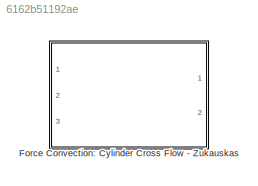
MODEL slx_6162b51192ae
KIND library
CONFIG AbsTol = auto
CONFIG FixedStep = auto
CONFIG MaxStep = auto
CONFIG MinStep = auto
CONFIG RelTol = 1e-3
CONFIG SampleTimeConstraint = Unconstrained
CONFIG Solver = ode45
CONFIG SolverMode = Auto
CONFIG SolverName = ode45
CONFIG StartTime = 0.0
CONFIG StopTime = 10.0
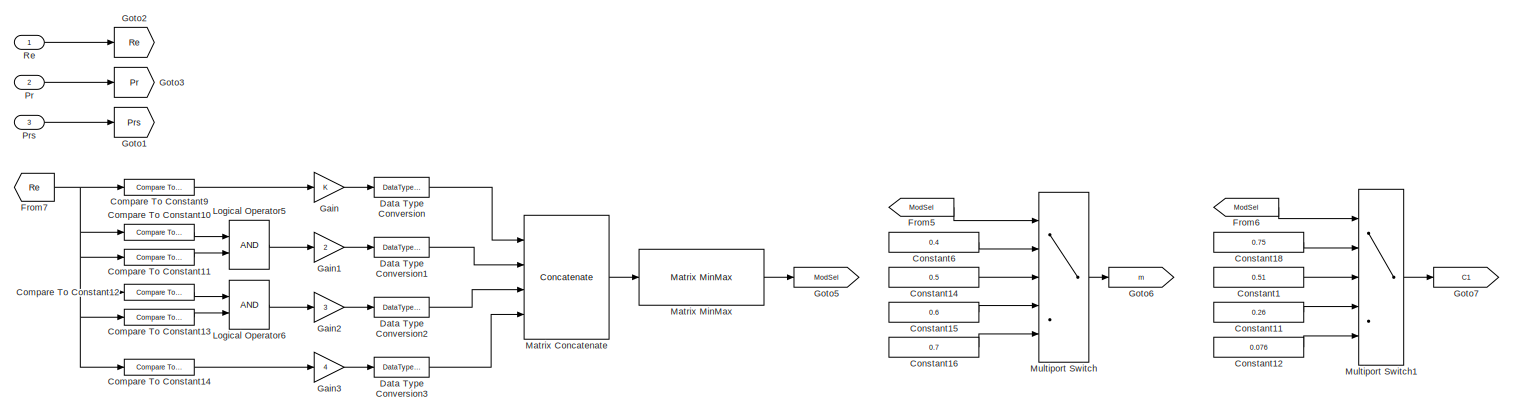
[diagram: Force Convection: Cylinder Cross Flow - Zukauskas - part 1/2, full width, top band]
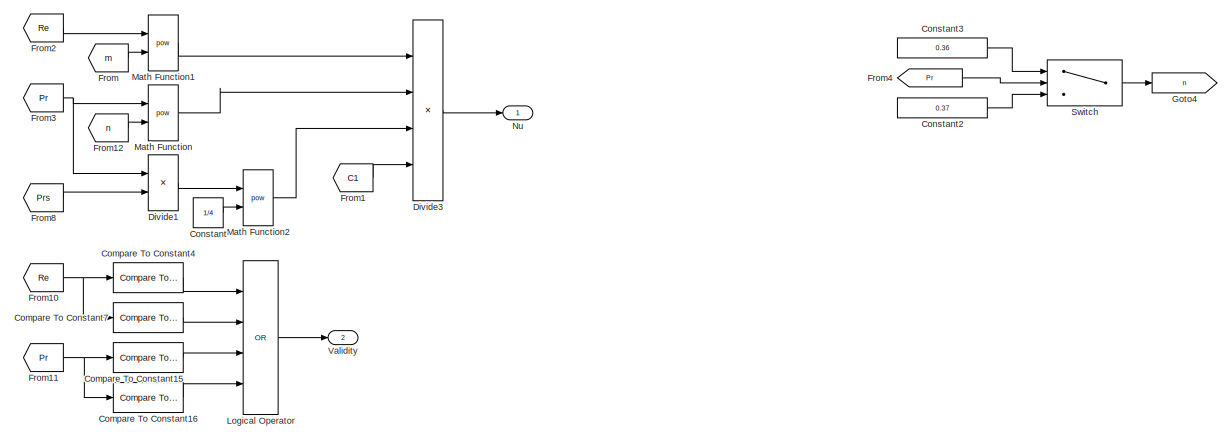
[diagram: Force Convection: Cylinder Cross Flow - Zukauskas - part 2/2, full width, bottom band]
BLOCK [SubSystem] Force Convection: Cylinder Cross Flow - Zukauskas
  Ports = [3, 2]
  RequestExecContextInheritance = off
BLOCK [Reference] Force Convection: Cylinder Cross Flow - Zukauskas/Compare To Constant10  REF=simulink/Logic and Bit
Operations/Compare
To Constant
  OutDataTypeStr = boolean
  Ports = [1, 1]
  SourceBlock = simulink/Logic and Bit\nOperations/Compare\nTo Constant
  SourceType = Compare To Constant
  ZeroCross = on
  const = 40
  relop = >=
BLOCK [Reference] Force Convection: Cylinder Cross Flow - Zukauskas/Compare To Constant11  REF=simulink/Logic and Bit
Operations/Compare
To Constant
  OutDataTypeStr = boolean
  Ports = [1, 1]
  SourceBlock = simulink/Logic and Bit\nOperations/Compare\nTo Constant
  SourceType = Compare To Constant
  ZeroCross = on
  const = 1000
  relop = <
BLOCK [Reference] Force Convection: Cylinder Cross Flow - Zukauskas/Compare To Constant12  REF=simulink/Logic and Bit
Operations/Compare
To Constant
  OutDataTypeStr = boolean
  Ports = [1, 1]
  SourceBlock = simulink/Logic and Bit\nOperations/Compare\nTo Constant
  SourceType = Compare To Constant
  ZeroCross = on
  const = 1000
  relop = >=
BLOCK [Reference] Force Convection: Cylinder Cross Flow - Zukauskas/Compare To Constant13  REF=simulink/Logic and Bit
Operations/Compare
To Constant
  OutDataTypeStr = boolean
  Ports = [1, 1]
  SourceBlock = simulink/Logic and Bit\nOperations/Compare\nTo Constant
  SourceType = Compare To Constant
  ZeroCross = on
  const = 200000
  relop = <
BLOCK [Reference] Force Convection: Cylinder Cross Flow - Zukauskas/Compare To Constant14  REF=simulink/Logic and Bit
Operations/Compare
To Constant
  OutDataTypeStr = boolean
  Ports = [1, 1]
  SourceBlock = simulink/Logic and Bit\nOperations/Compare\nTo Constant
  SourceType = Compare To Constant
  ZeroCross = on
  const = 200000
  relop = >=
BLOCK [Reference] Force Convection: Cylinder Cross Flow - Zukauskas/Compare To Constant15  REF=simulink/Logic and Bit
Operations/Compare
To Constant
  OutDataTypeStr = boolean
  Ports = [1, 1]
  SourceBlock = simulink/Logic and Bit\nOperations/Compare\nTo Constant
  SourceType = Compare To Constant
  ZeroCross = on
  const = 0.7
  relop = <
BLOCK [Reference] Force Convection: Cylinder Cross Flow - Zukauskas/Compare To Constant16  REF=simulink/Logic and Bit
Operations/Compare
To Constant
  OutDataTypeStr = boolean
  Ports = [1, 1]
  SourceBlock = simulink/Logic and Bit\nOperations/Compare\nTo Constant
  SourceType = Compare To Constant
  ZeroCross = on
  const = 500
  relop = >
BLOCK [Reference] Force Convection: Cylinder Cross Flow - Zukauskas/Compare To Constant4  REF=simulink/Logic and Bit
Operations/Compare
To Constant
  OutDataTypeStr = boolean
  Ports = [1, 1]
  SourceBlock = simulink/Logic and Bit\nOperations/Compare\nTo Constant
  SourceType = Compare To Constant
  ZeroCross = on
  const = 1
  relop = <
BLOCK [Reference] Force Convection: Cylinder Cross Flow - Zukauskas/Compare To Constant7  REF=simulink/Logic and Bit
Operations/Compare
To Constant
  OutDataTypeStr = boolean
  Ports = [1, 1]
  SourceBlock = simulink/Logic and Bit\nOperations/Compare\nTo Constant
  SourceType = Compare To Constant
  ZeroCross = on
  const = 1000000
  relop = >
BLOCK [Reference] Force Convection: Cylinder Cross Flow - Zukauskas/Compare To Constant9  REF=simulink/Logic and Bit
Operations/Compare
To Constant
  OutDataTypeStr = boolean
  Ports = [1, 1]
  SourceBlock = simulink/Logic and Bit\nOperations/Compare\nTo Constant
  SourceType = Compare To Constant
  ZeroCross = on
  const = 40
  relop = <
BLOCK [Constant] Force Convection: Cylinder Cross Flow - Zukauskas/Constant
  Value = 1/4
BLOCK [Constant] Force Convection: Cylinder Cross Flow - Zukauskas/Constant1
  Value = 0.51
BLOCK [Constant] Force Convection: Cylinder Cross Flow - Zukauskas/Constant11
  Value = 0.26
BLOCK [Constant] Force Convection: Cylinder Cross Flow - Zukauskas/Constant12
  Value = 0.076
BLOCK [Constant] Force Convection: Cylinder Cross Flow - Zukauskas/Constant14
  Value = 0.5
BLOCK [Constant] Force Convection: Cylinder Cross Flow - Zukauskas/Constant15
  Value = 0.6
BLOCK [Constant] Force Convection: Cylinder Cross Flow - Zukauskas/Constant16
  Value = 0.7
BLOCK [Constant] Force Convection: Cylinder Cross Flow - Zukauskas/Constant18
  Value = 0.75
BLOCK [Constant] Force Convection: Cylinder Cross Flow - Zukauskas/Constant2
  Value = 0.37
BLOCK [Constant] Force Convection: Cylinder Cross Flow - Zukauskas/Constant3
  Value = 0.36
BLOCK [Constant] Force Convection: Cylinder Cross Flow - Zukauskas/Constant6
  Value = 0.4
BLOCK [DataTypeConversion] Force Convection: Cylinder Cross Flow - Zukauskas/Data Type Conversion
  OutDataTypeStr = double
  RndMeth = Floor
  SaturateOnIntegerOverflow = off
BLOCK [DataTypeConversion] Force Convection: Cylinder Cross Flow - Zukauskas/Data Type Conversion1
  OutDataTypeStr = double
  RndMeth = Floor
  SaturateOnIntegerOverflow = off
BLOCK [DataTypeConversion] Force Convection: Cylinder Cross Flow - Zukauskas/Data Type Conversion2
  OutDataTypeStr = double
  RndMeth = Floor
  SaturateOnIntegerOverflow = off
BLOCK [DataTypeConversion] Force Convection: Cylinder Cross Flow - Zukauskas/Data Type Conversion3
  OutDataTypeStr = double
  RndMeth = Floor
  SaturateOnIntegerOverflow = off
BLOCK [Product] Force Convection: Cylinder Cross Flow - Zukauskas/Divide1
  InputSameDT = off
  Inputs = */
  OutDataTypeStr = Inherit: Inherit via internal rule
  Ports = [2, 1]
  RndMeth = Floor
  SaturateOnIntegerOverflow = off
BLOCK [Product] Force Convection: Cylinder Cross Flow - Zukauskas/Divide3
  InputSameDT = off
  Inputs = ****
  OutDataTypeStr = Inherit: Inherit via internal rule
  Ports = [4, 1]
  RndMeth = Floor
  SaturateOnIntegerOverflow = off
BLOCK [From] Force Convection: Cylinder Cross Flow - Zukauskas/From
  GotoTag = m
BLOCK [From] Force Convection: Cylinder Cross Flow - Zukauskas/From1
  GotoTag = C1
BLOCK [From] Force Convection: Cylinder Cross Flow - Zukauskas/From10
  GotoTag = Re
BLOCK [From] Force Convection: Cylinder Cross Flow - Zukauskas/From11
  GotoTag = Pr
BLOCK [From] Force Convection: Cylinder Cross Flow - Zukauskas/From12
  GotoTag = n
BLOCK [From] Force Convection: Cylinder Cross Flow - Zukauskas/From2
  GotoTag = Re
BLOCK [From] Force Convection: Cylinder Cross Flow - Zukauskas/From3
  GotoTag = Pr
BLOCK [From] Force Convection: Cylinder Cross Flow - Zukauskas/From4
  GotoTag = Pr
BLOCK [From] Force Convection: Cylinder Cross Flow - Zukauskas/From5
  GotoTag = ModSel
BLOCK [From] Force Convection: Cylinder Cross Flow - Zukauskas/From6
  GotoTag = ModSel
BLOCK [From] Force Convection: Cylinder Cross Flow - Zukauskas/From7
  GotoTag = Re
BLOCK [From] Force Convection: Cylinder Cross Flow - Zukauskas/From8
  GotoTag = Prs
BLOCK [Gain] Force Convection: Cylinder Cross Flow - Zukauskas/Gain
  OutDataTypeStr = Inherit: Inherit via internal rule
  ParamDataTypeStr = Inherit: Inherit via internal rule
  SaturateOnIntegerOverflow = off
BLOCK [Gain] Force Convection: Cylinder Cross Flow - Zukauskas/Gain1
  Gain = 2
  OutDataTypeStr = Inherit: Inherit via internal rule
  ParamDataTypeStr = Inherit: Inherit via internal rule
  SaturateOnIntegerOverflow = off
BLOCK [Gain] Force Convection: Cylinder Cross Flow - Zukauskas/Gain2
  Gain = 3
  OutDataTypeStr = Inherit: Inherit via internal rule
  ParamDataTypeStr = Inherit: Inherit via internal rule
  SaturateOnIntegerOverflow = off
BLOCK [Gain] Force Convection: Cylinder Cross Flow - Zukauskas/Gain3
  Gain = 4
  OutDataTypeStr = Inherit: Inherit via internal rule
  ParamDataTypeStr = Inherit: Inherit via internal rule
  SaturateOnIntegerOverflow = off
BLOCK [Goto] Force Convection: Cylinder Cross Flow - Zukauskas/Goto1
  GotoTag = Prs
BLOCK [Goto] Force Convection: Cylinder Cross Flow - Zukauskas/Goto2
  GotoTag = Re
BLOCK [Goto] Force Convection: Cylinder Cross Flow - Zukauskas/Goto3
  GotoTag = Pr
BLOCK [Goto] Force Convection: Cylinder Cross Flow - Zukauskas/Goto4
  GotoTag = n
BLOCK [Goto] Force Convection: Cylinder Cross Flow - Zukauskas/Goto5
  GotoTag = ModSel
BLOCK [Goto] Force Convection: Cylinder Cross Flow - Zukauskas/Goto6
  GotoTag = m
BLOCK [Goto] Force Convection: Cylinder Cross Flow - Zukauskas/Goto7
  GotoTag = C1
BLOCK [Logic] Force Convection: Cylinder Cross Flow - Zukauskas/Logical Operator
  AllPortsSameDT = off
  Inputs = 4
  Operator = OR
  OutDataTypeStr = boolean
  Ports = [4, 1]
BLOCK [Logic] Force Convection: Cylinder Cross Flow - Zukauskas/Logical Operator5
  AllPortsSameDT = off
  OutDataTypeStr = boolean
  Ports = [2, 1]
BLOCK [Logic] Force Convection: Cylinder Cross Flow - Zukauskas/Logical Operator6
  AllPortsSameDT = off
  OutDataTypeStr = boolean
  Ports = [2, 1]
BLOCK [Math] Force Convection: Cylinder Cross Flow - Zukauskas/Math Function
  Operator = pow
  Ports = [2, 1]
BLOCK [Math] Force Convection: Cylinder Cross Flow - Zukauskas/Math Function1
  Operator = pow
  Ports = [2, 1]
BLOCK [Math] Force Convection: Cylinder Cross Flow - Zukauskas/Math Function2
  Operator = pow
  Ports = [2, 1]
BLOCK [Concatenate] Force Convection: Cylinder Cross Flow - Zukauskas/Matrix Concatenate
  ConcatenateDimension = 2
  Mode = Multidimensional array
  NumInputs = 4
  Ports = [4, 1]
BLOCK [Reference] Force Convection: Cylinder Cross Flow - Zukauskas/Matrix MinMax  REF=lib_GenTools_MinMax/Matrix MinMax
  BN_M = gcb
  Ports = [1, 1]
  SourceBlock = lib_GenTools_MinMax/Matrix MinMax
  SourceType = TSAT: Matrix MinMax Block
  all_M = off
  cols_M = off
  minmax_M = off
  rows_M = on
BLOCK [MultiPortSwitch] Force Convection: Cylinder Cross Flow - Zukauskas/Multiport Switch
  InputSameDT = off
  Inputs = 4
  Ports = [5, 1]
  SaturateOnIntegerOverflow = off
BLOCK [MultiPortSwitch] Force Convection: Cylinder Cross Flow - Zukauskas/Multiport Switch1
  InputSameDT = off
  Inputs = 4
  Ports = [5, 1]
  SaturateOnIntegerOverflow = off
BLOCK [Outport] Force Convection: Cylinder Cross Flow - Zukauskas/Nu
  IconDisplay = Port number
BLOCK [Inport] Force Convection: Cylinder Cross Flow - Zukauskas/Pr
  IconDisplay = Port number
  Port = 2
BLOCK [Inport] Force Convection: Cylinder Cross Flow - Zukauskas/Prs
  IconDisplay = Port number
  Port = 3
BLOCK [Inport] Force Convection: Cylinder Cross Flow - Zukauskas/Re
  IconDisplay = Port number
BLOCK [Switch] Force Convection: Cylinder Cross Flow - Zukauskas/Switch
  InputSameDT = off
  SaturateOnIntegerOverflow = off
  Threshold = 10
BLOCK [Outport] Force Convection: Cylinder Cross Flow - Zukauskas/Validity
  IconDisplay = Port number
  Port = 2
LINE Force Convection: Cylinder Cross Flow - Zukauskas/Compare To Constant10:1 -> Force Convection: Cylinder Cross Flow - Zukauskas/Logical Operator5:1
LINE Force Convection: Cylinder Cross Flow - Zukauskas/Compare To Constant11:1 -> Force Convection: Cylinder Cross Flow - Zukauskas/Logical Operator5:2
LINE Force Convection: Cylinder Cross Flow - Zukauskas/Compare To Constant12:1 -> Force Convection: Cylinder Cross Flow - Zukauskas/Logical Operator6:1
LINE Force Convection: Cylinder Cross Flow - Zukauskas/Compare To Constant13:1 -> Force Convection: Cylinder Cross Flow - Zukauskas/Logical Operator6:2
LINE Force Convection: Cylinder Cross Flow - Zukauskas/Compare To Constant14:1 -> Force Convection: Cylinder Cross Flow - Zukauskas/Gain3:1
LINE Force Convection: Cylinder Cross Flow - Zukauskas/Compare To Constant15:1 -> Force Convection: Cylinder Cross Flow - Zukauskas/Logical Operator:3
LINE Force Convection: Cylinder Cross Flow - Zukauskas/Compare To Constant16:1 -> Force Convection: Cylinder Cross Flow - Zukauskas/Logical Operator:4
LINE Force Convection: Cylinder Cross Flow - Zukauskas/Compare To Constant4:1 -> Force Convection: Cylinder Cross Flow - Zukauskas/Logical Operator:1
LINE Force Convection: Cylinder Cross Flow - Zukauskas/Compare To Constant7:1 -> Force Convection: Cylinder Cross Flow - Zukauskas/Logical Operator:2
LINE Force Convection: Cylinder Cross Flow - Zukauskas/Compare To Constant9:1 -> Force Convection: Cylinder Cross Flow - Zukauskas/Gain:1
LINE Force Convection: Cylinder Cross Flow - Zukauskas/Constant11:1 -> Force Convection: Cylinder Cross Flow - Zukauskas/Multiport Switch1:4
LINE Force Convection: Cylinder Cross Flow - Zukauskas/Constant12:1 -> Force Convection: Cylinder Cross Flow - Zukauskas/Multiport Switch1:5
LINE Force Convection: Cylinder Cross Flow - Zukauskas/Constant14:1 -> Force Convection: Cylinder Cross Flow - Zukauskas/Multiport Switch:3
LINE Force Convection: Cylinder Cross Flow - Zukauskas/Constant15:1 -> Force Convection: Cylinder Cross Flow - Zukauskas/Multiport Switch:4
LINE Force Convection: Cylinder Cross Flow - Zukauskas/Constant16:1 -> Force Convection: Cylinder Cross Flow - Zukauskas/Multiport Switch:5
LINE Force Convection: Cylinder Cross Flow - Zukauskas/Constant18:1 -> Force Convection: Cylinder Cross Flow - Zukauskas/Multiport Switch1:2
LINE Force Convection: Cylinder Cross Flow - Zukauskas/Constant1:1 -> Force Convection: Cylinder Cross Flow - Zukauskas/Multiport Switch1:3
LINE Force Convection: Cylinder Cross Flow - Zukauskas/Constant2:1 -> Force Convection: Cylinder Cross Flow - Zukauskas/Switch:3
LINE Force Convection: Cylinder Cross Flow - Zukauskas/Constant3:1 -> Force Convection: Cylinder Cross Flow - Zukauskas/Switch:1
LINE Force Convection: Cylinder Cross Flow - Zukauskas/Constant6:1 -> Force Convection: Cylinder Cross Flow - Zukauskas/Multiport Switch:2
LINE Force Convection: Cylinder Cross Flow - Zukauskas/Constant:1 -> Force Convection: Cylinder Cross Flow - Zukauskas/Math Function2:2
LINE Force Convection: Cylinder Cross Flow - Zukauskas/Data Type Conversion1:1 -> Force Convection: Cylinder Cross Flow - Zukauskas/Matrix Concatenate:2
LINE Force Convection: Cylinder Cross Flow - Zukauskas/Data Type Conversion2:1 -> Force Convection: Cylinder Cross Flow - Zukauskas/Matrix Concatenate:3
LINE Force Convection: Cylinder Cross Flow - Zukauskas/Data Type Conversion3:1 -> Force Convection: Cylinder Cross Flow - Zukauskas/Matrix Concatenate:4
LINE Force Convection: Cylinder Cross Flow - Zukauskas/Data Type Conversion:1 -> Force Convection: Cylinder Cross Flow - Zukauskas/Matrix Concatenate:1
LINE Force Convection: Cylinder Cross Flow - Zukauskas/Divide1:1 -> Force Convection: Cylinder Cross Flow - Zukauskas/Math Function2:1
LINE Force Convection: Cylinder Cross Flow - Zukauskas/Divide3:1 -> Force Convection: Cylinder Cross Flow - Zukauskas/Nu:1
NET Force Convection: Cylinder Cross Flow - Zukauskas/From10:1 -> Force Convection: Cylinder Cross Flow - Zukauskas/Compare To Constant4:1, Force Convection: Cylinder Cross Flow - Zukauskas/Compare To Constant7:1
NET Force Convection: Cylinder Cross Flow - Zukauskas/From11:1 -> Force Convection: Cylinder Cross Flow - Zukauskas/Compare To Constant15:1, Force Convection: Cylinder Cross Flow - Zukauskas/Compare To Constant16:1
LINE Force Convection: Cylinder Cross Flow - Zukauskas/From12:1 -> Force Convection: Cylinder Cross Flow - Zukauskas/Math Function:2
LINE Force Convection: Cylinder Cross Flow - Zukauskas/From1:1 -> Force Convection: Cylinder Cross Flow - Zukauskas/Divide3:4
LINE Force Convection: Cylinder Cross Flow - Zukauskas/From2:1 -> Force Convection: Cylinder Cross Flow - Zukauskas/Math Function1:1
NET Force Convection: Cylinder Cross Flow - Zukauskas/From3:1 -> Force Convection: Cylinder Cross Flow - Zukauskas/Divide1:1, Force Convection: Cylinder Cross Flow - Zukauskas/Math Function:1
LINE Force Convection: Cylinder Cross Flow - Zukauskas/From4:1 -> Force Convection: Cylinder Cross Flow - Zukauskas/Switch:2
LINE Force Convection: Cylinder Cross Flow - Zukauskas/From5:1 -> Force Convection: Cylinder Cross Flow - Zukauskas/Multiport Switch:1
LINE Force Convection: Cylinder Cross Flow - Zukauskas/From6:1 -> Force Convection: Cylinder Cross Flow - Zukauskas/Multiport Switch1:1
NET Force Convection: Cylinder Cross Flow - Zukauskas/From7:1 -> Force Convection: Cylinder Cross Flow - Zukauskas/Compare To Constant10:1, Force Convection: Cylinder Cross Flow - Zukauskas/Compare To Constant11:1, Force Convection: Cylinder Cross Flow - Zukauskas/Compare To Constant12:1, Force Convection: Cylinder Cross Flow - Zukauskas/Compare To Constant13:1, Force Convection: Cylinder Cross Flow - Zukauskas/Compare To Constant14:1, Force Convection: Cylinder Cross Flow - Zukauskas/Compare To Constant9:1
LINE Force Convection: Cylinder Cross Flow - Zukauskas/From8:1 -> Force Convection: Cylinder Cross Flow - Zukauskas/Divide1:2
LINE Force Convection: Cylinder Cross Flow - Zukauskas/From:1 -> Force Convection: Cylinder Cross Flow - Zukauskas/Math Function1:2
LINE Force Convection: Cylinder Cross Flow - Zukauskas/Gain1:1 -> Force Convection: Cylinder Cross Flow - Zukauskas/Data Type Conversion1:1
LINE Force Convection: Cylinder Cross Flow - Zukauskas/Gain2:1 -> Force Convection: Cylinder Cross Flow - Zukauskas/Data Type Conversion2:1
LINE Force Convection: Cylinder Cross Flow - Zukauskas/Gain3:1 -> Force Convection: Cylinder Cross Flow - Zukauskas/Data Type Conversion3:1
LINE Force Convection: Cylinder Cross Flow - Zukauskas/Gain:1 -> Force Convection: Cylinder Cross Flow - Zukauskas/Data Type Conversion:1
LINE Force Convection: Cylinder Cross Flow - Zukauskas/Logical Operator5:1 -> Force Convection: Cylinder Cross Flow - Zukauskas/Gain1:1
LINE Force Convection: Cylinder Cross Flow - Zukauskas/Logical Operator6:1 -> Force Convection: Cylinder Cross Flow - Zukauskas/Gain2:1
LINE Force Convection: Cylinder Cross Flow - Zukauskas/Logical Operator:1 -> Force Convection: Cylinder Cross Flow - Zukauskas/Validity:1
LINE Force Convection: Cylinder Cross Flow - Zukauskas/Math Function1:1 -> Force Convection: Cylinder Cross Flow - Zukauskas/Divide3:1
LINE Force Convection: Cylinder Cross Flow - Zukauskas/Math Function2:1 -> Force Convection: Cylinder Cross Flow - Zukauskas/Divide3:3
LINE Force Convection: Cylinder Cross Flow - Zukauskas/Math Function:1 -> Force Convection: Cylinder Cross Flow - Zukauskas/Divide3:2
LINE Force Convection: Cylinder Cross Flow - Zukauskas/Matrix Concatenate:1 -> Force Convection: Cylinder Cross Flow - Zukauskas/Matrix MinMax:1
LINE Force Convection: Cylinder Cross Flow - Zukauskas/Matrix MinMax:1 -> Force Convection: Cylinder Cross Flow - Zukauskas/Goto5:1
LINE Force Convection: Cylinder Cross Flow - Zukauskas/Multiport Switch1:1 -> Force Convection: Cylinder Cross Flow - Zukauskas/Goto7:1
LINE Force Convection: Cylinder Cross Flow - Zukauskas/Multiport Switch:1 -> Force Convection: Cylinder Cross Flow - Zukauskas/Goto6:1
LINE Force Convection: Cylinder Cross Flow - Zukauskas/Pr:1 -> Force Convection: Cylinder Cross Flow - Zukauskas/Goto3:1
LINE Force Convection: Cylinder Cross Flow - Zukauskas/Prs:1 -> Force Convection: Cylinder Cross Flow - Zukauskas/Goto1:1
LINE Force Convection: Cylinder Cross Flow - Zukauskas/Re:1 -> Force Convection: Cylinder Cross Flow - Zukauskas/Goto2:1
LINE Force Convection: Cylinder Cross Flow - Zukauskas/Switch:1 -> Force Convection: Cylinder Cross Flow - Zukauskas/Goto4:1
note: NET lines group one-source signal fan-out (src -> all destinations, sorted); 1:1 wires keep LINE
